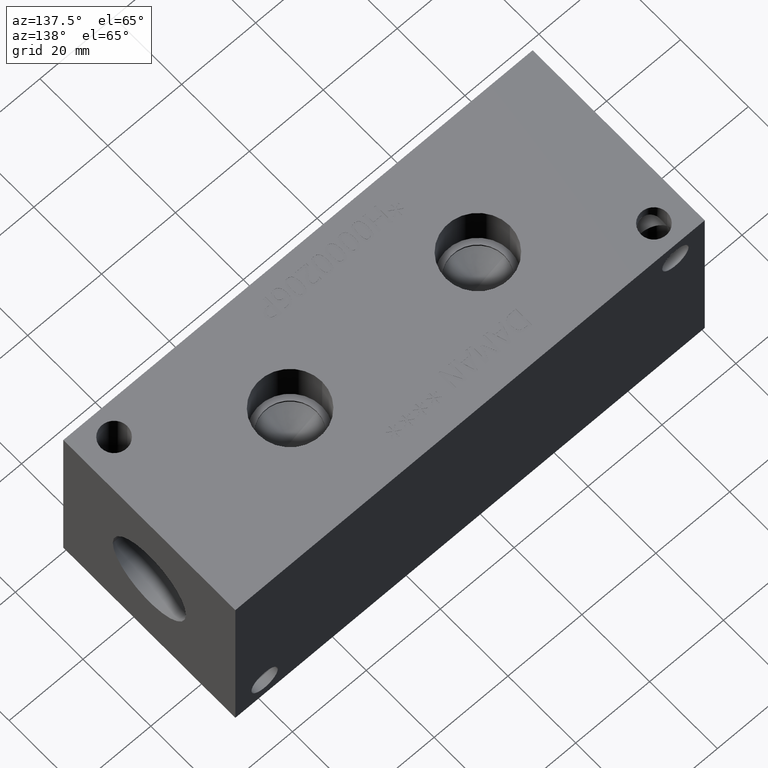
[diagram: clean part render]
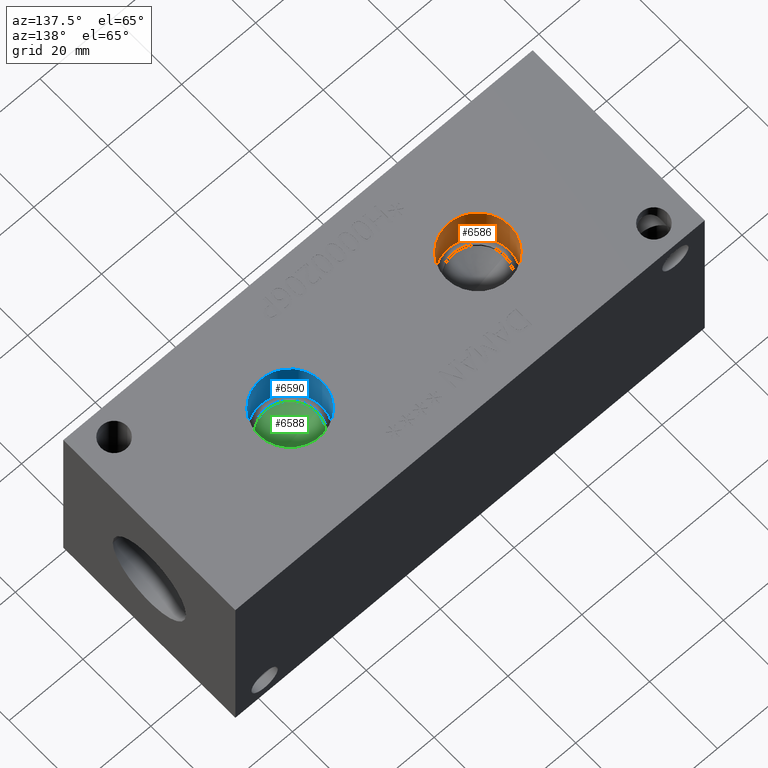
[diagram: same view with three faces highlighted in distinct colors, each labeled with its STEP entity id]
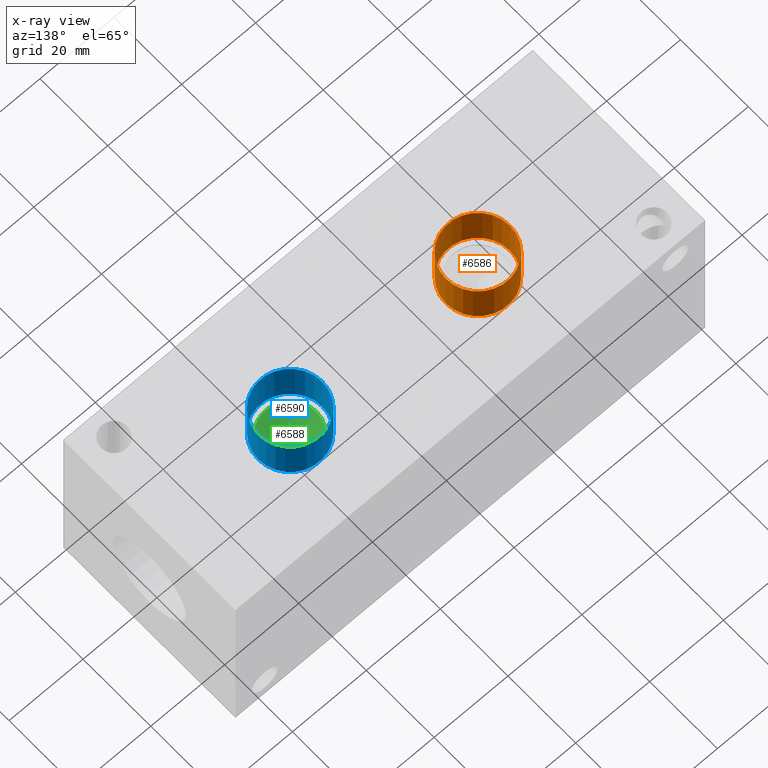
[diagram: x-ray of the same camera — body ghosted, the three highlighted faces saturated]
A machine part, auxiliary view with three faces highlighted in distinct colors.
The next image is the same camera in x-ray (body ghosted, the three faces saturated) — at least one of them is partly hidden behind the body in this view.
Their STEP definitions:

[orange] entity #6586 — the highlighted cylindrical surface (bore or boss wall) has radius 8.6487 mm, axis along (0, 0, 1).
#34=CYLINDRICAL_SURFACE('',#6857,8.6487);
#46=CIRCLE('',#6681,8.6487);
#47=CIRCLE('',#6682,8.6487);
#60=CIRCLE('',#6854,8.6487);
#61=CIRCLE('',#6855,8.6487);
#649=FACE_OUTER_BOUND('',#1017,.T.);
#1017=EDGE_LOOP('',(#5771,#5772,#5773,#5774,#5775,#5776));
#1674=LINE('',#11236,#2319);
#2319=VECTOR('',#8000,8.6487);
#2964=VERTEX_POINT('',#10509);
#2965=VERTEX_POINT('',#10510);
#3127=VERTEX_POINT('',#11229);
#3128=VERTEX_POINT('',#11230);
#3714=EDGE_CURVE('',#2964,#2965,#46,.T.);
#3715=EDGE_CURVE('',#2965,#2964,#47,.T.);
#4020=EDGE_CURVE('',#3127,#3128,#60,.T.);
#4021=EDGE_CURVE('',#3128,#3127,#61,.T.);
#4023=EDGE_CURVE('',#2965,#3128,#1674,.T.);
#5771=ORIENTED_EDGE('',*,*,#3714,.F.);
#5772=ORIENTED_EDGE('',*,*,#3715,.F.);
#5773=ORIENTED_EDGE('',*,*,#4023,.T.);
#5774=ORIENTED_EDGE('',*,*,#4020,.F.);
#5775=ORIENTED_EDGE('',*,*,#4021,.F.);
#5776=ORIENTED_EDGE('',*,*,#4023,.F.);
#6586=ADVANCED_FACE('',(#649),#34,.F.);
#6681=AXIS2_PLACEMENT_3D('',#10511,#7374,#7375);
#6682=AXIS2_PLACEMENT_3D('',#10512,#7376,#7377);
#6854=AXIS2_PLACEMENT_3D('',#11231,#7992,#7993);
#6855=AXIS2_PLACEMENT_3D('',#11232,#7994,#7995);
#6857=AXIS2_PLACEMENT_3D('',#11235,#7998,#7999);
#7374=DIRECTION('center_axis',(0.,0.,-1.));
#7375=DIRECTION('ref_axis',(1.,0.,0.));
#7376=DIRECTION('center_axis',(0.,0.,-1.));
#7377=DIRECTION('ref_axis',(1.,0.,0.));
#7992=DIRECTION('center_axis',(0.,0.,1.));
#7993=DIRECTION('ref_axis',(1.,0.,0.));
#7994=DIRECTION('center_axis',(0.,0.,1.));
#7995=DIRECTION('ref_axis',(1.,0.,0.));
#7998=DIRECTION('center_axis',(0.,0.,1.));
#7999=DIRECTION('ref_axis',(1.,0.,0.));
#8000=DIRECTION('',(0.,0.,-1.));
#10509=CARTESIAN_POINT('',(46.7487,25.4,50.8));
#10510=CARTESIAN_POINT('',(29.4513,25.4,50.8));
#10511=CARTESIAN_POINT('Origin',(38.1,25.4,50.8));
#10512=CARTESIAN_POINT('Origin',(38.1,25.4,50.8));
#11229=CARTESIAN_POINT('',(46.7487,25.4,39.0652));
#11230=CARTESIAN_POINT('',(29.4513,25.4,39.0652));
#11231=CARTESIAN_POINT('Origin',(38.1,25.4,39.0652));
#11232=CARTESIAN_POINT('Origin',(38.1,25.4,39.0652));
#11235=CARTESIAN_POINT('Origin',(38.1,25.4,44.9326));
#11236=CARTESIAN_POINT('',(29.4513,25.4,44.9326));

[blue] entity #6590 — the highlighted cylindrical surface (bore or boss wall) has radius 8.6487 mm, axis along (0, 0, 1).
#36=CYLINDRICAL_SURFACE('',#6866,8.6487);
#48=CIRCLE('',#6683,8.6487);
#49=CIRCLE('',#6684,8.6487);
#65=CIRCLE('',#6863,8.6487);
#66=CIRCLE('',#6864,8.6487);
#653=FACE_OUTER_BOUND('',#1022,.T.);
#1022=EDGE_LOOP('',(#5789,#5790,#5791,#5792,#5793,#5794));
#1677=LINE('',#11254,#2322);
#2322=VECTOR('',#8021,8.6487);
#2966=VERTEX_POINT('',#10513);
#2967=VERTEX_POINT('',#10514);
#3133=VERTEX_POINT('',#11247);
#3134=VERTEX_POINT('',#11248);
#3716=EDGE_CURVE('',#2966,#2967,#48,.T.);
#3717=EDGE_CURVE('',#2967,#2966,#49,.T.);
#4028=EDGE_CURVE('',#3133,#3134,#65,.T.);
#4029=EDGE_CURVE('',#3134,#3133,#66,.T.);
#4031=EDGE_CURVE('',#2967,#3134,#1677,.T.);
#5789=ORIENTED_EDGE('',*,*,#3716,.F.);
#5790=ORIENTED_EDGE('',*,*,#3717,.F.);
#5791=ORIENTED_EDGE('',*,*,#4031,.T.);
#5792=ORIENTED_EDGE('',*,*,#4028,.F.);
#5793=ORIENTED_EDGE('',*,*,#4029,.F.);
#5794=ORIENTED_EDGE('',*,*,#4031,.F.);
#6590=ADVANCED_FACE('',(#653),#36,.F.);
#6683=AXIS2_PLACEMENT_3D('',#10515,#7378,#7379);
#6684=AXIS2_PLACEMENT_3D('',#10516,#7380,#7381);
#6863=AXIS2_PLACEMENT_3D('',#11249,#8013,#8014);
#6864=AXIS2_PLACEMENT_3D('',#11250,#8015,#8016);
#6866=AXIS2_PLACEMENT_3D('',#11253,#8019,#8020);
#7378=DIRECTION('center_axis',(0.,0.,-1.));
#7379=DIRECTION('ref_axis',(1.,0.,0.));
#7380=DIRECTION('center_axis',(0.,0.,-1.));
#7381=DIRECTION('ref_axis',(1.,0.,0.));
#8013=DIRECTION('center_axis',(0.,0.,1.));
#8014=DIRECTION('ref_axis',(1.,0.,0.));
#8015=DIRECTION('center_axis',(0.,0.,1.));
#8016=DIRECTION('ref_axis',(1.,0.,0.));
#8019=DIRECTION('center_axis',(0.,0.,1.));
#8020=DIRECTION('ref_axis',(1.,0.,0.));
#8021=DIRECTION('',(0.,0.,-1.));
#10513=CARTESIAN_POINT('',(97.5487,25.4,50.8));
#10514=CARTESIAN_POINT('',(80.2513,25.4,50.8));
#10515=CARTESIAN_POINT('Origin',(88.9,25.4,50.8));
#10516=CARTESIAN_POINT('Origin',(88.9,25.4,50.8));
#11247=CARTESIAN_POINT('',(97.5487,25.4,39.0652));
#11248=CARTESIAN_POINT('',(80.2513,25.4,39.0652));
#11249=CARTESIAN_POINT('Origin',(88.9,25.4,39.0652));
#11250=CARTESIAN_POINT('Origin',(88.9,25.4,39.0652));
#11253=CARTESIAN_POINT('Origin',(88.9,25.4,44.9326));
#11254=CARTESIAN_POINT('',(80.2513,25.4,44.9326));

[green] entity #6588 — the highlighted conical surface has half-angle 60 deg.
#15=CONICAL_SURFACE('',#6859,3.57505,1.0471975511966);
#63=CIRCLE('',#6860,7.1501);
#64=CIRCLE('',#6861,7.1501);
#651=FACE_OUTER_BOUND('',#1019,.T.);
#1019=EDGE_LOOP('',(#5782,#5783,#5784,#5785));
#1676=LINE('',#11244,#2321);
#2321=VECTOR('',#8008,3.57505);
#3130=VERTEX_POINT('',#11240);
#3131=VERTEX_POINT('',#11241);
#3132=VERTEX_POINT('',#11243);
#4025=EDGE_CURVE('',#3130,#3131,#63,.T.);
#4026=EDGE_CURVE('',#3131,#3132,#1676,.T.);
#4027=EDGE_CURVE('',#3131,#3130,#64,.T.);
#5782=ORIENTED_EDGE('',*,*,#4025,.T.);
#5783=ORIENTED_EDGE('',*,*,#4026,.T.);
#5784=ORIENTED_EDGE('',*,*,#4026,.F.);
#5785=ORIENTED_EDGE('',*,*,#4027,.T.);
#6588=ADVANCED_FACE('',(#651),#15,.F.);
#6859=AXIS2_PLACEMENT_3D('',#11239,#8004,#8005);
#6860=AXIS2_PLACEMENT_3D('',#11242,#8006,#8007);
#6861=AXIS2_PLACEMENT_3D('',#11245,#8009,#8010);
#8004=DIRECTION('center_axis',(0.,0.,1.));
#8005=DIRECTION('ref_axis',(1.,0.,0.));
#8006=DIRECTION('center_axis',(0.,0.,1.));
#8007=DIRECTION('ref_axis',(1.,0.,0.));
#8008=DIRECTION('',(0.866025403784439,1.06057523872491E-16,-0.5));
#8009=DIRECTION('center_axis',(0.,0.,1.));
#8010=DIRECTION('ref_axis',(1.,0.,0.));
#11239=CARTESIAN_POINT('Origin',(88.9,25.4,36.5883339201336));
#11240=CARTESIAN_POINT('',(96.0501,25.4,38.65239));
#11241=CARTESIAN_POINT('',(81.7499,25.4,38.65239));
#11242=CARTESIAN_POINT('Origin',(88.9,25.4,38.65239));
#11243=CARTESIAN_POINT('',(88.9,25.4,34.5242778402673));
#11244=CARTESIAN_POINT('',(85.32495,25.4,36.5883339201336));
#11245=CARTESIAN_POINT('Origin',(88.9,25.4,38.65239));